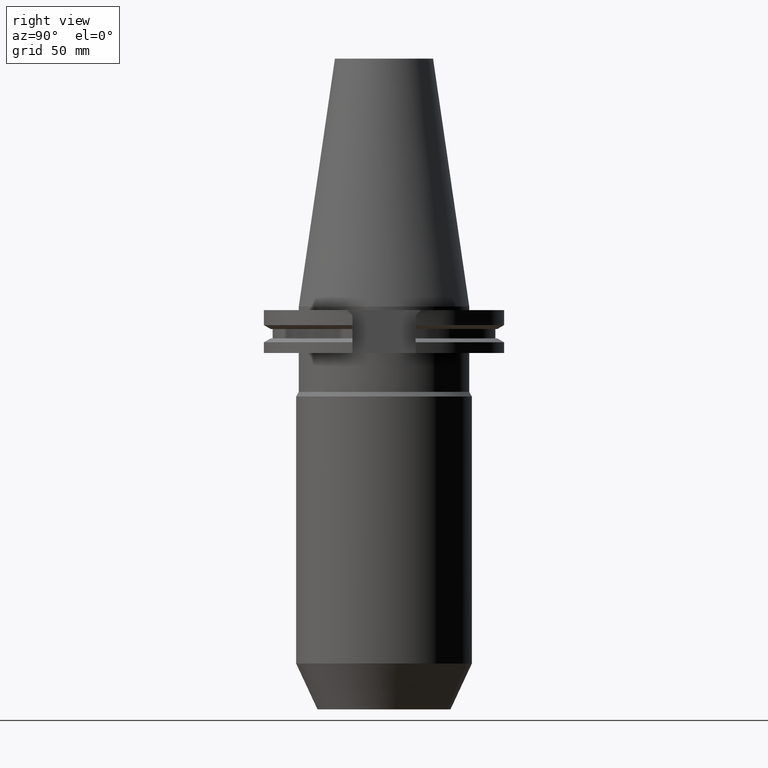
[diagram: clean part render]
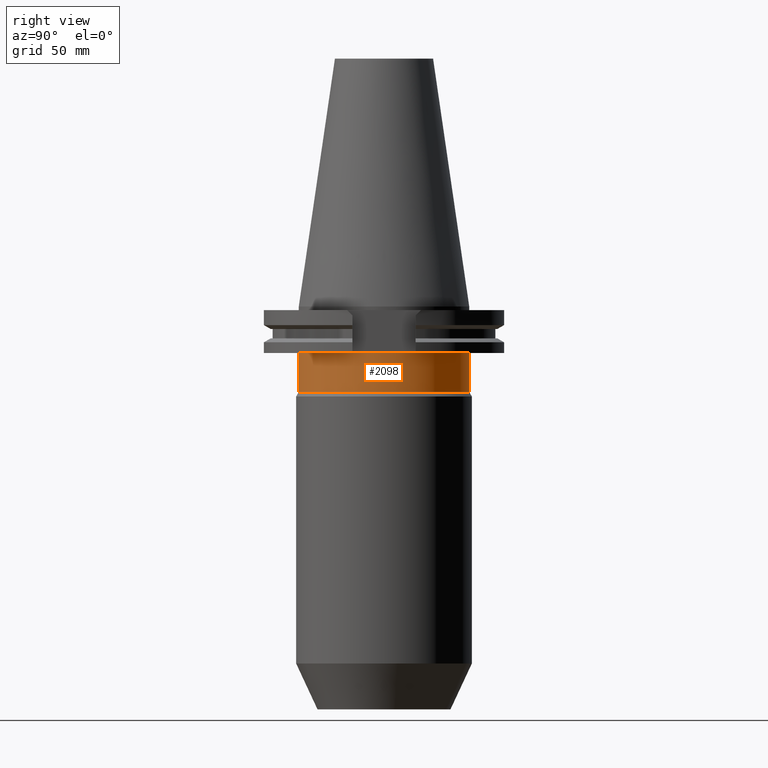
[diagram: same view with one face highlighted and labeled with its STEP entity id]
A machine part, right view. The second image highlights one B-rep face of the part: STEP entity #2098.
In plain terms, the highlighted cylindrical surface (partial cylindrical patch) has radius 34.925 mm, axis along (0, 0, 1).
Its self-contained STEP definition (entity closure, byte-faithful):
#259=CARTESIAN_POINT('',(0.E0,0.E0,-1.905E1));
#260=DIRECTION('',(0.E0,0.E0,-1.E0));
#261=DIRECTION('',(0.E0,1.E0,0.E0));
#262=AXIS2_PLACEMENT_3D('',#259,#260,#261);
#848=DIRECTION('',(0.E0,2.361051096883E-14,-1.E0));
#849=VECTOR('',#848,1.595E1);
#850=CARTESIAN_POINT('',(0.E0,-3.4925E1,-1.905E1));
#851=LINE('',#850,#849);
#855=DIRECTION('',(0.E0,-2.361051096883E-14,-1.E0));
#856=VECTOR('',#855,1.595E1);
#857=CARTESIAN_POINT('',(0.E0,3.4925E1,-1.905E1));
#858=LINE('',#857,#856);
#877=CARTESIAN_POINT('',(0.E0,0.E0,-3.5E1));
#878=DIRECTION('',(0.E0,0.E0,1.E0));
#879=DIRECTION('',(0.E0,-1.E0,0.E0));
#880=AXIS2_PLACEMENT_3D('',#877,#878,#879);
#1318=CARTESIAN_POINT('',(0.E0,-3.4925E1,-1.905E1));
#1319=CARTESIAN_POINT('',(0.E0,3.4925E1,-1.905E1));
#1320=VERTEX_POINT('',#1318);
#1321=VERTEX_POINT('',#1319);
#1322=CARTESIAN_POINT('',(0.E0,3.4925E1,-3.5E1));
#1323=VERTEX_POINT('',#1322);
#1324=CARTESIAN_POINT('',(0.E0,-3.4925E1,-3.5E1));
#1325=VERTEX_POINT('',#1324);
#2086=CARTESIAN_POINT('',(0.E0,0.E0,-1.78435E2));
#2087=DIRECTION('',(0.E0,0.E0,1.E0));
#2088=DIRECTION('',(0.E0,1.E0,0.E0));
#2089=AXIS2_PLACEMENT_3D('',#2086,#2087,#2088);
#2090=CYLINDRICAL_SURFACE('',#2089,3.4925E1);
#2091=ORIENTED_EDGE('',*,*,#2076,.T.);
#2093=ORIENTED_EDGE('',*,*,#2092,.F.);
#2094=ORIENTED_EDGE('',*,*,#2079,.F.);
#2095=ORIENTED_EDGE('',*,*,#1624,.F.);
#2096=EDGE_LOOP('',(#2091,#2093,#2094,#2095));
#2097=FACE_OUTER_BOUND('',#2096,.F.);
#263=CIRCLE('',#262,3.4925E1);
#881=CIRCLE('',#880,3.4925E1);
#1624=EDGE_CURVE('',#1321,#1320,#263,.T.);
#2076=EDGE_CURVE('',#1321,#1323,#858,.T.);
#2079=EDGE_CURVE('',#1320,#1325,#851,.T.);
#2092=EDGE_CURVE('',#1325,#1323,#881,.T.);
#2098=ADVANCED_FACE('',(#2097),#2090,.T.);